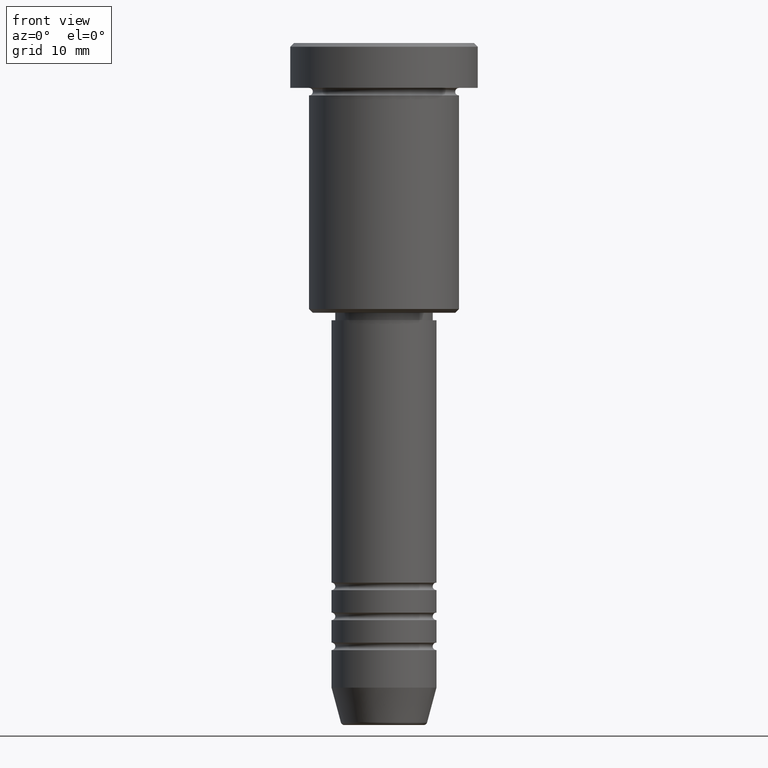
[diagram: clean part render]
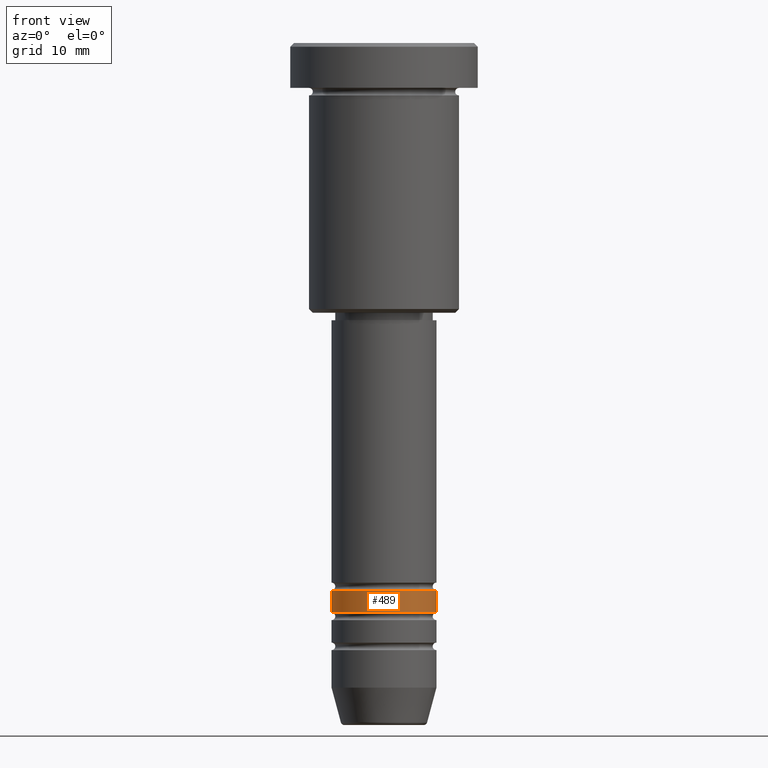
[diagram: same view with one face highlighted and labeled with its STEP entity id]
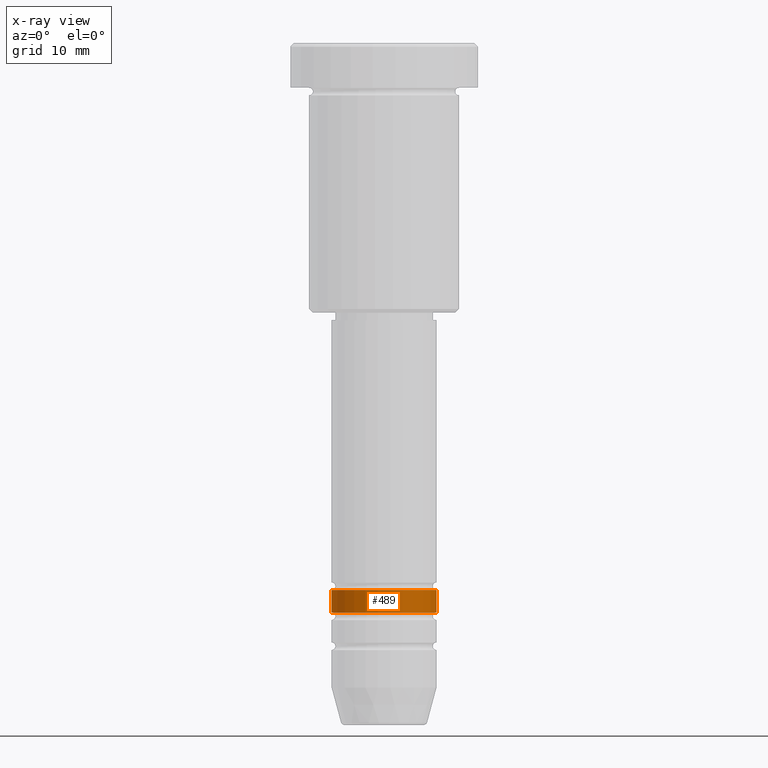
[diagram: x-ray of the same camera — body ghosted, the highlighted face saturated]
A machine part, front view. The second image highlights one B-rep face of the part: STEP entity #489.
The next image is the same camera in x-ray: the body ghosted, the highlighted face saturated — about 0% of this face is hidden behind the body in this view.
In plain terms, the highlighted cylindrical surface (partial cylindrical patch) has radius 7 mm, axis along (-0, -0, 1).
Its self-contained STEP definition (entity closure, byte-faithful):
#10 = ORIENTED_EDGE ( 'NONE', *, *, #518, .F. ) ;
#24 = EDGE_CURVE ( 'NONE', #1056, #295, #461, .T. ) ;
#45 = CARTESIAN_POINT ( 'NONE',  ( -7.000000000000000000, 8.572527594031473190E-16, -72.99999999999988631 ) ) ;
#74 = DIRECTION ( 'NONE',  ( 1.000000000000000000, 0.000000000000000000, 0.000000000000000000 ) ) ;
#147 = EDGE_LOOP ( 'NONE', ( #739, #525, #184, #10 ) ) ;
#184 = ORIENTED_EDGE ( 'NONE', *, *, #532, .T. ) ;
#189 = CARTESIAN_POINT ( 'NONE',  ( 7.000000000000000888, 0.000000000000000000, 0.000000000000000000 ) ) ;
#292 = LINE ( 'NONE', #189, #1164 ) ;
#295 = VERTEX_POINT ( 'NONE', #1107 ) ;
#310 = DIRECTION ( 'NONE',  ( -0.000000000000000000, -0.000000000000000000, 1.000000000000000000 ) ) ;
#350 = AXIS2_PLACEMENT_3D ( 'NONE', #1103, #1092, #74 ) ;
#372 = FACE_OUTER_BOUND ( 'NONE', #147, .T. ) ;
#379 = VERTEX_POINT ( 'NONE', #678 ) ;
#380 = CYLINDRICAL_SURFACE ( 'NONE', #559, 7.000000000000000888 ) ;
#427 = CARTESIAN_POINT ( 'NONE',  ( 0.000000000000000000, 0.000000000000000000, -75.99999999999990052 ) ) ;
#461 = CIRCLE ( 'NONE', #723, 7.000000000000002665 ) ;
#489 = ADVANCED_FACE ( 'NONE', ( #372 ), #380, .T. ) ;
#518 = EDGE_CURVE ( 'NONE', #776, #379, #727, .T. ) ;
#525 = ORIENTED_EDGE ( 'NONE', *, *, #24, .T. ) ;
#532 = EDGE_CURVE ( 'NONE', #295, #379, #292, .T. ) ;
#536 = CARTESIAN_POINT ( 'NONE',  ( -7.000000000000002665, 8.572527594031475162E-16, -75.99999999999990052 ) ) ;
#540 = DIRECTION ( 'NONE',  ( -0.000000000000000000, -0.000000000000000000, 1.000000000000000000 ) ) ;
#559 = AXIS2_PLACEMENT_3D ( 'NONE', #1009, #540, #906 ) ;
#678 = CARTESIAN_POINT ( 'NONE',  ( 7.000000000000000000, 0.000000000000000000, -72.99999999999988631 ) ) ;
#680 = DIRECTION ( 'NONE',  ( 1.000000000000000000, 0.000000000000000000, 0.000000000000000000 ) ) ;
#723 = AXIS2_PLACEMENT_3D ( 'NONE', #427, #310, #680 ) ;
#727 = CIRCLE ( 'NONE', #350, 7.000000000000000000 ) ;
#739 = ORIENTED_EDGE ( 'NONE', *, *, #993, .F. ) ;
#776 = VERTEX_POINT ( 'NONE', #45 ) ;
#864 = DIRECTION ( 'NONE',  ( -0.000000000000000000, -0.000000000000000000, 1.000000000000000000 ) ) ;
#891 = DIRECTION ( 'NONE',  ( -0.000000000000000000, -0.000000000000000000, 1.000000000000000000 ) ) ;
#906 = DIRECTION ( 'NONE',  ( 1.000000000000000000, 0.000000000000000000, 0.000000000000000000 ) ) ;
#958 = CARTESIAN_POINT ( 'NONE',  ( -7.000000000000000888, 8.572527594031474176E-16, 0.000000000000000000 ) ) ;
#993 = EDGE_CURVE ( 'NONE', #1056, #776, #1144, .T. ) ;
#1009 = CARTESIAN_POINT ( 'NONE',  ( 0.000000000000000000, 0.000000000000000000, 0.000000000000000000 ) ) ;
#1056 = VERTEX_POINT ( 'NONE', #536 ) ;
#1092 = DIRECTION ( 'NONE',  ( -0.000000000000000000, -0.000000000000000000, 1.000000000000000000 ) ) ;
#1103 = CARTESIAN_POINT ( 'NONE',  ( 0.000000000000000000, 0.000000000000000000, -72.99999999999988631 ) ) ;
#1107 = CARTESIAN_POINT ( 'NONE',  ( 7.000000000000002665, 0.000000000000000000, -75.99999999999990052 ) ) ;
#1126 = VECTOR ( 'NONE', #864, 1000.000000000000000 ) ;
#1144 = LINE ( 'NONE', #958, #1126 ) ;
#1164 = VECTOR ( 'NONE', #891, 1000.000000000000000 ) ;